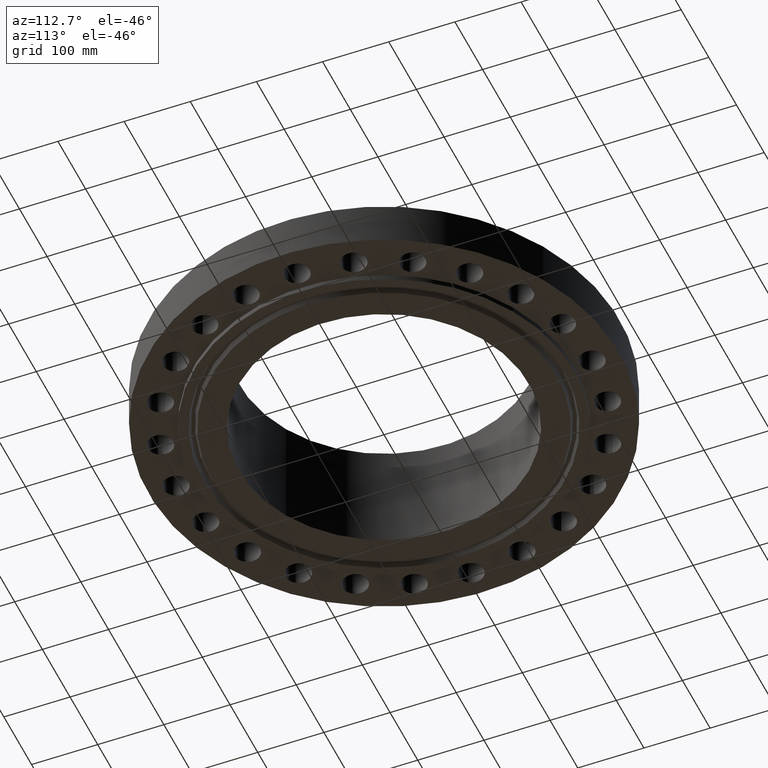
[diagram: clean part render]
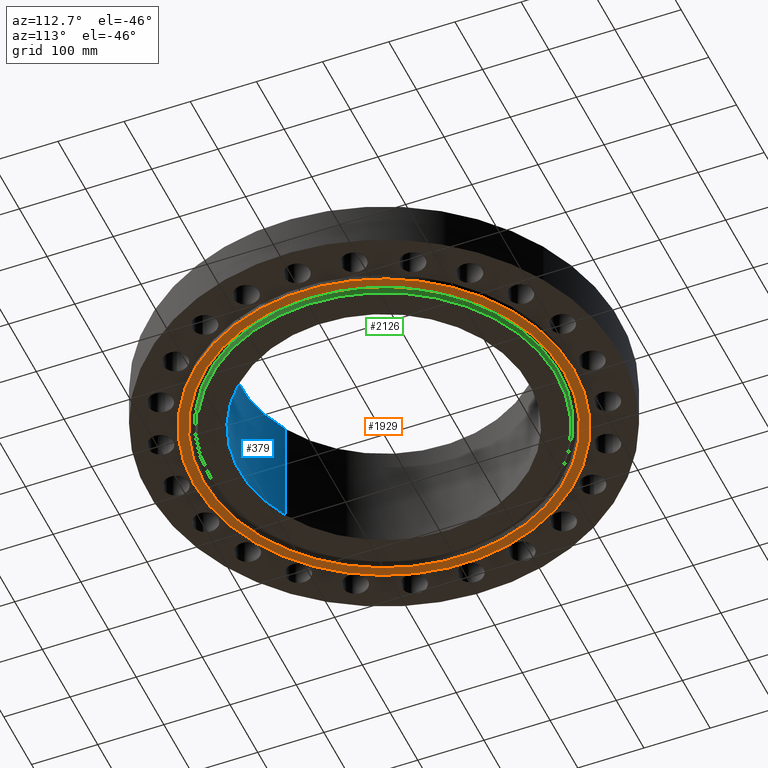
[diagram: same view with three faces highlighted in distinct colors, each labeled with its STEP entity id]
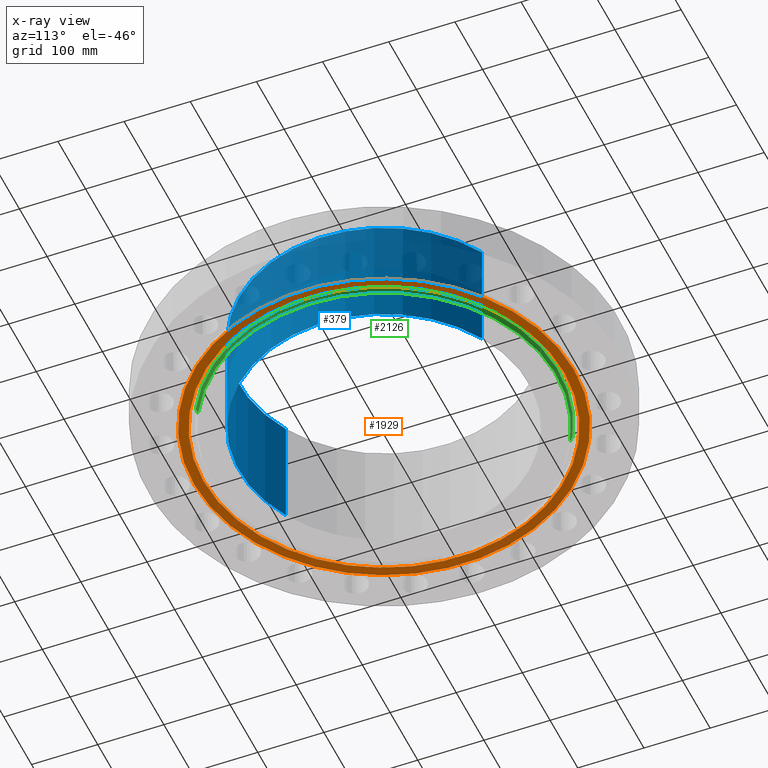
[diagram: x-ray of the same camera — body ghosted, the three highlighted faces saturated]
A machine part, auxiliary view with three faces highlighted in distinct colors.
The next image is the same camera in x-ray (body ghosted, the three faces saturated) — at least one of them is partly hidden behind the body in this view.
Their STEP definitions:

[orange] entity #1929 — the highlighted planar face has unit normal (0, 0, -1).
#431=AXIS2_PLACEMENT_3D('Circle Axis2P3D',#429,#430,$) ;
#466=AXIS2_PLACEMENT_3D('Circle Axis2P3D',#464,#465,$) ;
#1905=AXIS2_PLACEMENT_3D('Plane Axis2P3D',#1902,#1903,#1904) ;
#1913=AXIS2_PLACEMENT_3D('Circle Axis2P3D',#1911,#1912,$) ;
#1922=AXIS2_PLACEMENT_3D('Circle Axis2P3D',#1920,#1921,$) ;
#429=CARTESIAN_POINT('Axis2P3D Location',(0.,0.,-0.313000000001)) ;
#433=CARTESIAN_POINT('Vertex',(-5.42350140548,-9.92765273142,-0.313000000001)) ;
#435=CARTESIAN_POINT('Vertex',(5.42350140548,9.92765273142,-0.313000000001)) ;
#464=CARTESIAN_POINT('Axis2P3D Location',(0.,0.,-0.313000000001)) ;
#1902=CARTESIAN_POINT('Axis2P3D Location',(0.,8.62500000003,-0.313000000001)) ;
#1911=CARTESIAN_POINT('Axis2P3D Location',(-8.39223703654E-016,1.1189649382E-015,-0.313000000001)) ;
#1915=CARTESIAN_POINT('Vertex',(5.14639344417,-9.42041001065,-0.313000000001)) ;
#1917=CARTESIAN_POINT('Vertex',(-5.14639344417,9.42041001065,-0.313000000001)) ;
#1920=CARTESIAN_POINT('Axis2P3D Location',(-8.39223703654E-016,-1.1189649382E-015,-0.313000000001)) ;
#430=DIRECTION('Axis2P3D Direction',(0.,0.,-0.0393700787402)) ;
#465=DIRECTION('Axis2P3D Direction',(0.,0.,-0.0393700787402)) ;
#1903=DIRECTION('Axis2P3D Direction',(0.,0.,-0.0393700787402)) ;
#1904=DIRECTION('Axis2P3D XDirection',(0.0393700787402,0.,0.)) ;
#1912=DIRECTION('Axis2P3D Direction',(0.,0.,-0.0393700787402)) ;
#1921=DIRECTION('Axis2P3D Direction',(0.,0.,-0.0393700787402)) ;
#1908=ORIENTED_EDGE('',*,*,#437,.T.) ;
#1909=ORIENTED_EDGE('',*,*,#468,.T.) ;
#1926=ORIENTED_EDGE('',*,*,#1919,.F.) ;
#1927=ORIENTED_EDGE('',*,*,#1924,.F.) ;
#1928=FACE_BOUND('',#1925,.T.) ;
#1929=ADVANCED_FACE('PartBody',(#1910,#1928),#1906,.T.) ;
#432=CIRCLE('generated circle',#431,11.3125) ;
#467=CIRCLE('generated circle',#466,11.3125) ;
#1914=CIRCLE('generated circle',#1913,10.7345) ;
#1923=CIRCLE('generated circle',#1922,10.7345) ;
#437=EDGE_CURVE('',#434,#436,#432,.T.) ;
#468=EDGE_CURVE('',#436,#434,#467,.T.) ;
#1919=EDGE_CURVE('',#1916,#1918,#1914,.T.) ;
#1924=EDGE_CURVE('',#1918,#1916,#1923,.T.) ;
#1907=EDGE_LOOP('',(#1908,#1909)) ;
#1925=EDGE_LOOP('',(#1926,#1927)) ;
#1910=FACE_OUTER_BOUND('',#1907,.T.) ;
#1906=PLANE('',#1905) ;
#434=VERTEX_POINT('',#433) ;
#436=VERTEX_POINT('',#435) ;
#1916=VERTEX_POINT('',#1915) ;
#1918=VERTEX_POINT('',#1917) ;

[blue] entity #379 — the highlighted cylindrical surface (partial cylindrical patch) has radius 219.075 mm, axis along (0, 0, -1).
#343=AXIS2_PLACEMENT_3D('Cylinder Axis2P3D',#340,#341,#342) ;
#347=AXIS2_PLACEMENT_3D('Circle Axis2P3D',#345,#346,$) ;
#363=AXIS2_PLACEMENT_3D('Circle Axis2P3D',#361,#362,$) ;
#340=CARTESIAN_POINT('Axis2P3D Location',(0.,0.,3.09350000001)) ;
#345=CARTESIAN_POINT('Axis2P3D Location',(0.,0.,6.50000000003)) ;
#349=CARTESIAN_POINT('Vertex',(4.13504527048,7.56914959633,6.50000000003)) ;
#351=CARTESIAN_POINT('Vertex',(-4.13504527048,-7.56914959633,6.50000000003)) ;
#354=CARTESIAN_POINT('Line Origine',(4.13504527048,7.56914959633,3.09350000001)) ;
#358=CARTESIAN_POINT('Vertex',(4.13504527048,7.56914959633,-0.313000000001)) ;
#361=CARTESIAN_POINT('Axis2P3D Location',(0.,0.,-0.313000000001)) ;
#365=CARTESIAN_POINT('Vertex',(-4.13504527048,-7.56914959633,-0.313000000001)) ;
#368=CARTESIAN_POINT('Line Origine',(-4.13504527048,-7.56914959633,3.09350000001)) ;
#341=DIRECTION('Axis2P3D Direction',(0.,0.,-0.0393700787402)) ;
#342=DIRECTION('Axis2P3D XDirection',(-0.0188750212049,-0.0345504945626,0.)) ;
#346=DIRECTION('Axis2P3D Direction',(0.,0.,-0.0393700787402)) ;
#355=DIRECTION('Vector Direction',(0.,0.,-0.0393700787402)) ;
#362=DIRECTION('Axis2P3D Direction',(0.,0.,-0.0393700787402)) ;
#369=DIRECTION('Vector Direction',(0.,0.,-0.0393700787402)) ;
#356=VECTOR('Line Direction',#355,0.0393700787402) ;
#370=VECTOR('Line Direction',#369,0.0393700787402) ;
#374=ORIENTED_EDGE('',*,*,#353,.F.) ;
#375=ORIENTED_EDGE('',*,*,#360,.T.) ;
#376=ORIENTED_EDGE('',*,*,#367,.T.) ;
#377=ORIENTED_EDGE('',*,*,#372,.F.) ;
#379=ADVANCED_FACE('PartBody',(#378),#344,.F.) ;
#348=CIRCLE('generated circle',#347,8.62500000003) ;
#364=CIRCLE('generated circle',#363,8.62500000003) ;
#344=CYLINDRICAL_SURFACE('generated cylinder',#343,8.62500000003) ;
#353=EDGE_CURVE('',#350,#352,#348,.T.) ;
#360=EDGE_CURVE('',#350,#359,#357,.T.) ;
#367=EDGE_CURVE('',#359,#366,#364,.T.) ;
#372=EDGE_CURVE('',#352,#366,#371,.T.) ;
#373=EDGE_LOOP('',(#374,#375,#376,#377)) ;
#378=FACE_OUTER_BOUND('',#373,.T.) ;
#357=LINE('Line',#354,#356) ;
#371=LINE('Line',#368,#370) ;
#350=VERTEX_POINT('',#349) ;
#352=VERTEX_POINT('',#351) ;
#359=VERTEX_POINT('',#358) ;
#366=VERTEX_POINT('',#365) ;

[green] entity #2126 — the highlighted conical surface has half-angle 23 deg.
#1932=AXIS2_PLACEMENT_3D('Circle Axis2P3D',#1930,#1931,$) ;
#2076=AXIS2_PLACEMENT_3D('Circle Axis2P3D',#2074,#2075,$) ;
#2108=AXIS2_PLACEMENT_3D('Cone Axis2P3D',#2105,#2106,#2107) ;
#1930=CARTESIAN_POINT('Axis2P3D Location',(1.1189649382E-015,1.1189649382E-015,-0.313000000001)) ;
#1934=CARTESIAN_POINT('Vertex',(-4.92154286656,9.00882378912,-0.313000000001)) ;
#1936=CARTESIAN_POINT('Vertex',(4.92154286656,-9.00882378912,-0.313000000001)) ;
#2071=CARTESIAN_POINT('Vertex',(4.98139599015,-9.11838419697,-0.0188873350169)) ;
#2074=CARTESIAN_POINT('Axis2P3D Location',(0.,0.,-0.0188873350169)) ;
#2078=CARTESIAN_POINT('Vertex',(-4.98139599015,9.11838419697,-0.0188873350169)) ;
#2105=CARTESIAN_POINT('Axis2P3D Location',(0.,0.,-0.373000000001)) ;
#2110=CARTESIAN_POINT('Line Origine',(-4.95146942836,9.06360399304,-0.165943667509)) ;
#2115=CARTESIAN_POINT('Line Origine',(4.95146942836,-9.06360399304,-0.165943667509)) ;
#1931=DIRECTION('Axis2P3D Direction',(0.,0.,-0.0393700787402)) ;
#2075=DIRECTION('Axis2P3D Direction',(0.,0.,0.0393700787402)) ;
#2106=DIRECTION('Axis2P3D Direction',(0.,0.,0.0393700787402)) ;
#2107=DIRECTION('Axis2P3D XDirection',(-0.0188750212049,0.0345504945626,0.)) ;
#2111=DIRECTION('Vector Direction',(-0.00737505833565,0.0134999537303,0.0362403485611)) ;
#2116=DIRECTION('Vector Direction',(0.00737505833565,-0.0134999537303,0.0362403485611)) ;
#2112=VECTOR('Line Direction',#2111,0.0393700787402) ;
#2117=VECTOR('Line Direction',#2116,0.0393700787402) ;
#2121=ORIENTED_EDGE('',*,*,#2114,.F.) ;
#2122=ORIENTED_EDGE('',*,*,#2080,.F.) ;
#2123=ORIENTED_EDGE('',*,*,#2119,.T.) ;
#2124=ORIENTED_EDGE('',*,*,#1938,.F.) ;
#2126=ADVANCED_FACE('PartBody',(#2125),#2109,.T.) ;
#1933=CIRCLE('generated circle',#1932,10.2655) ;
#2077=CIRCLE('generated circle',#2076,10.3903434195) ;
#2109=CONICAL_SURFACE('Cone',#2108,10.2400315111,0.401425727959) ;
#1938=EDGE_CURVE('',#1935,#1937,#1933,.T.) ;
#2080=EDGE_CURVE('',#2072,#2079,#2077,.T.) ;
#2114=EDGE_CURVE('',#2079,#1935,#2113,.F.) ;
#2119=EDGE_CURVE('',#2072,#1937,#2118,.F.) ;
#2120=EDGE_LOOP('',(#2121,#2122,#2123,#2124)) ;
#2125=FACE_OUTER_BOUND('',#2120,.T.) ;
#2113=LINE('Line',#2110,#2112) ;
#2118=LINE('Line',#2115,#2117) ;
#1935=VERTEX_POINT('',#1934) ;
#1937=VERTEX_POINT('',#1936) ;
#2072=VERTEX_POINT('',#2071) ;
#2079=VERTEX_POINT('',#2078) ;